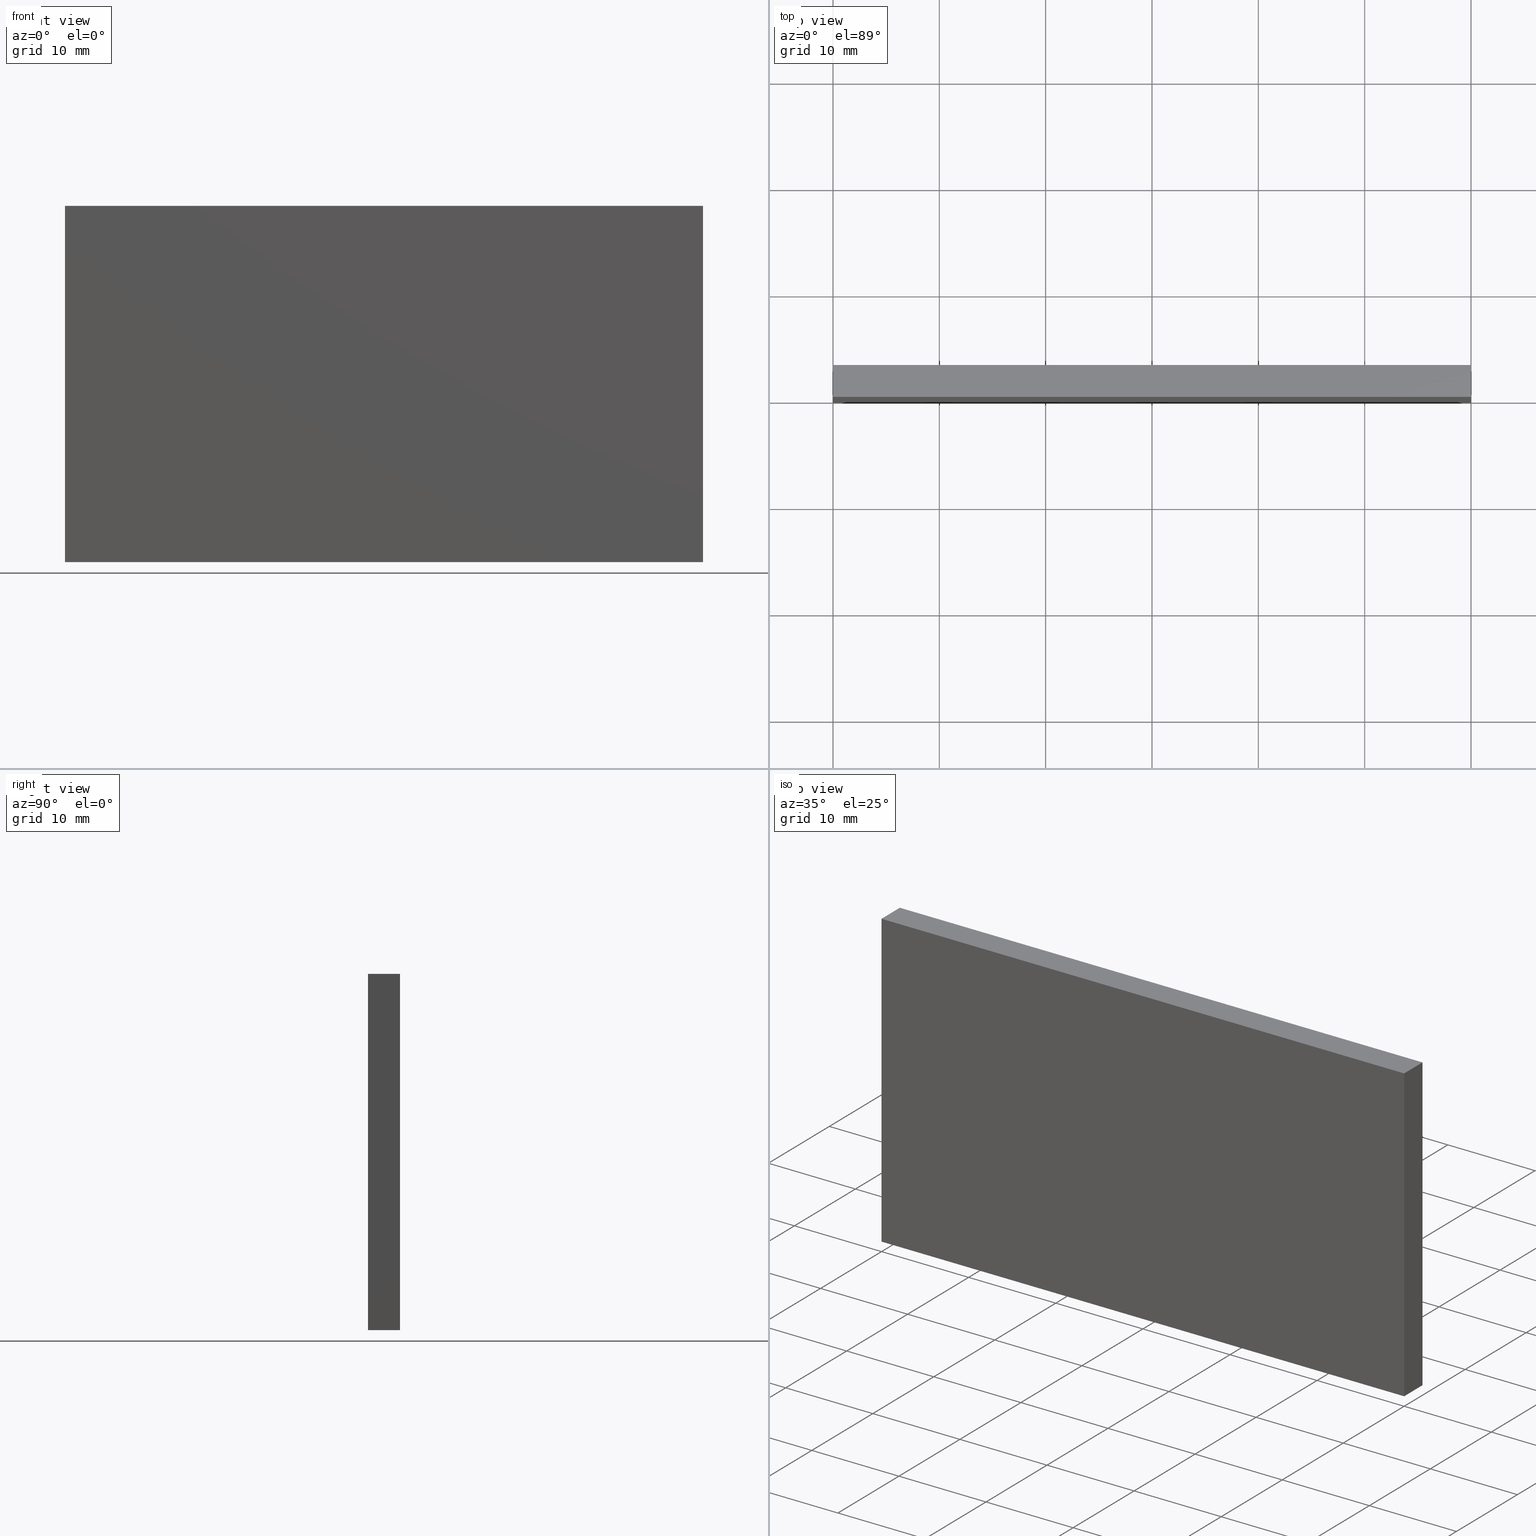
[diagram: canonical four-view strip — front | top / right | iso, engineering-drawing reading convention]
A machine part, canonical four-view strip (front | top / right | iso — engineering-drawing reading convention). The complete STEP part file that produces these views, byte-faithful:
ISO-10303-21;
HEADER;
FILE_DESCRIPTION (( 'STEP AP214' ),
    '1' );
FILE_NAME ('A000201-V.step',
    '2020-03-12T15:21:16',
    ( '' ),
    ( '' ),
    'SwSTEP 2.0',
    'SolidWorks 2010',
    '' );
FILE_SCHEMA (( 'AUTOMOTIVE_DESIGN' ));
ENDSEC;

DATA;
#1 = EDGE_CURVE ( 'NONE', #252, #242, #93, .T. ) ;
#2 = AXIS2_PLACEMENT_3D ( 'NONE', #235, #282, #267 ) ;
#3 = PRESENTATION_LAYER_ASSIGNMENT (  '', '', ( #55 ) ) ;
#4 = EDGE_CURVE ( 'NONE', #214, #240, #44, .T. ) ;
#5 = MECHANICAL_DESIGN_GEOMETRIC_PRESENTATION_REPRESENTATION (  '', ( #143 ), #46 ) ;
#6 = MECHANICAL_DESIGN_GEOMETRIC_PRESENTATION_REPRESENTATION (  '', ( #61 ), #58 ) ;
#7 = AXIS2_PLACEMENT_3D ( 'NONE', #289, #180, #189 ) ;
#8 = EDGE_CURVE ( 'NONE', #253, #226, #90, .T. ) ;
#9 = AXIS2_PLACEMENT_3D ( 'NONE', #215, #286, #288 ) ;
#10 = MECHANICAL_DESIGN_GEOMETRIC_PRESENTATION_REPRESENTATION (  '', ( #121 ), #124 ) ;
#11 = PRESENTATION_LAYER_ASSIGNMENT (  '', '', ( #143 ) ) ;
#12 = EDGE_CURVE ( 'NONE', #257, #242, #91, .T. ) ;
#13 = EDGE_CURVE ( 'NONE', #242, #214, #131, .T. ) ;
#14 = AXIS2_PLACEMENT_3D ( 'NONE', #176, #170, #162 ) ;
#15 = PRESENTATION_LAYER_ASSIGNMENT (  '', '', ( #74 ) ) ;
#16 = PRESENTATION_LAYER_ASSIGNMENT (  '', '', ( #121 ) ) ;
#17 = MECHANICAL_DESIGN_GEOMETRIC_PRESENTATION_REPRESENTATION (  '', ( #55 ), #87 ) ;
#18 = PRESENTATION_LAYER_ASSIGNMENT (  '', '', ( #139 ) ) ;
#19 = MECHANICAL_DESIGN_GEOMETRIC_PRESENTATION_REPRESENTATION (  '', ( #74 ), #52 ) ;
#20 = AXIS2_PLACEMENT_3D ( 'NONE', #184, #185, #196 ) ;
#21 = EDGE_CURVE ( 'NONE', #257, #253, #102, .T. ) ;
#22 = EDGE_CURVE ( 'NONE', #252, #253, #104, .T. ) ;
#23 = PRODUCT_RELATED_PRODUCT_CATEGORY ( 'part', '', ( #41 ) ) ;
#24 = PRESENTATION_LAYER_ASSIGNMENT (  '', '', ( #129 ) ) ;
#25 = AXIS2_PLACEMENT_3D ( 'NONE', #278, #168, #181 ) ;
#26 = MECHANICAL_DESIGN_GEOMETRIC_PRESENTATION_REPRESENTATION (  '', ( #129 ), #133 ) ;
#27 = EDGE_CURVE ( 'NONE', #226, #240, #106, .T. ) ;
#28 = MECHANICAL_DESIGN_GEOMETRIC_PRESENTATION_REPRESENTATION (  '', ( #115 ), #136 ) ;
#29 = EDGE_CURVE ( 'NONE', #255, #226, #108, .T. ) ;
#30 = MECHANICAL_DESIGN_GEOMETRIC_PRESENTATION_REPRESENTATION (  '', ( #139 ), #45 ) ;
#31 = EDGE_CURVE ( 'NONE', #240, #252, #97, .T. ) ;
#32 = EDGE_CURVE ( 'NONE', #255, #257, #111, .T. ) ;
#33 = AXIS2_PLACEMENT_3D ( 'NONE', #224, #193, #197 ) ;
#34 = PRODUCT_DEFINITION ( 'UNKNOWN', '', #36, #39 ) ;
#35 = PRESENTATION_LAYER_ASSIGNMENT (  '', '', ( #61 ) ) ;
#36 = PRODUCT_DEFINITION_FORMATION_WITH_SPECIFIED_SOURCE ( 'ANY', '', #41, .NOT_KNOWN. ) ;
#37 = PRESENTATION_LAYER_ASSIGNMENT (  '', '', ( #115 ) ) ;
#38 = EDGE_CURVE ( 'NONE', #214, #255, #113, .T. ) ;
#39 = PRODUCT_DEFINITION_CONTEXT ( 'detailed design', #207, 'design' ) ;
#40 = PRODUCT_DEFINITION_SHAPE ( 'NONE', 'NONE',  #34 ) ;
#41 = PRODUCT ( 'A000201-V', 'A000201-V', '', ( #281 ) ) ;
#42 = FACE_OUTER_BOUND ( 'NONE', #86, .T. ) ;
#43 = ORIENTED_EDGE ( 'NONE', *, *, #38, .F. ) ;
#44 = LINE ( 'NONE', #213, #95 ) ;
#45 =( GEOMETRIC_REPRESENTATION_CONTEXT ( 3 ) GLOBAL_UNCERTAINTY_ASSIGNED_CONTEXT ( ( #148 ) ) GLOBAL_UNIT_ASSIGNED_CONTEXT ( ( #262, #188, #287 ) ) REPRESENTATION_CONTEXT ( 'NONE', 'WORKASPACE' ) );
#46 =( GEOMETRIC_REPRESENTATION_CONTEXT ( 3 ) GLOBAL_UNCERTAINTY_ASSIGNED_CONTEXT ( ( #147 ) ) GLOBAL_UNIT_ASSIGNED_CONTEXT ( ( #201, #171, #270 ) ) REPRESENTATION_CONTEXT ( 'NONE', 'WORKASPACE' ) );
#47 = SURFACE_STYLE_FILL_AREA ( #192 ) ;
#48 = CLOSED_SHELL ( 'NONE', ( #157, #158, #161, #156, #160, #159 ) ) ;
#49 = FACE_OUTER_BOUND ( 'NONE', #88, .T. ) ;
#50 = ORIENTED_EDGE ( 'NONE', *, *, #29, .T. ) ;
#51 = COLOUR_RGB ( '',0.2000000000000000100, 0.2000000000000000100, 0.2000000000000000100 ) ;
#52 =( GEOMETRIC_REPRESENTATION_CONTEXT ( 3 ) GLOBAL_UNCERTAINTY_ASSIGNED_CONTEXT ( ( #145 ) ) GLOBAL_UNIT_ASSIGNED_CONTEXT ( ( #271, #269, #187 ) ) REPRESENTATION_CONTEXT ( 'NONE', 'WORKASPACE' ) );
#53 =( GEOMETRIC_REPRESENTATION_CONTEXT ( 3 ) GLOBAL_UNCERTAINTY_ASSIGNED_CONTEXT ( ( #153 ) ) GLOBAL_UNIT_ASSIGNED_CONTEXT ( ( #266, #276, #279 ) ) REPRESENTATION_CONTEXT ( 'NONE', 'WORKASPACE' ) );
#54 = COLOUR_RGB ( '',0.7529411764705882200, 0.7529411764705882200, 0.7529411764705882200 ) ;
#55 = STYLED_ITEM ( 'NONE', ( #56 ), #159 ) ;
#56 = PRESENTATION_STYLE_ASSIGNMENT (( #164 ) ) ;
#57 = SURFACE_STYLE_FILL_AREA ( #274 ) ;
#58 =( GEOMETRIC_REPRESENTATION_CONTEXT ( 3 ) GLOBAL_UNCERTAINTY_ASSIGNED_CONTEXT ( ( #155 ) ) GLOBAL_UNIT_ASSIGNED_CONTEXT ( ( #211, #190, #165 ) ) REPRESENTATION_CONTEXT ( 'NONE', 'WORKASPACE' ) );
#59 = PRESENTATION_STYLE_ASSIGNMENT (( #280 ) ) ;
#60 = COLOUR_RGB ( '',0.2000000000000000100, 0.2000000000000000100, 0.2000000000000000100 ) ;
#61 = STYLED_ITEM ( 'NONE', ( #59 ), #154 ) ;
#62 = SHAPE_DEFINITION_REPRESENTATION ( #40, #154 ) ;
#63 = ORIENTED_EDGE ( 'NONE', *, *, #38, .T. ) ;
#64 = ORIENTED_EDGE ( 'NONE', *, *, #12, .T. ) ;
#65 = ORIENTED_EDGE ( 'NONE', *, *, #4, .F. ) ;
#66 = ORIENTED_EDGE ( 'NONE', *, *, #13, .F. ) ;
#67 = ORIENTED_EDGE ( 'NONE', *, *, #21, .T. ) ;
#68 = ORIENTED_EDGE ( 'NONE', *, *, #1, .F. ) ;
#69 = ORIENTED_EDGE ( 'NONE', *, *, #12, .F. ) ;
#70 = ORIENTED_EDGE ( 'NONE', *, *, #8, .F. ) ;
#71 = ORIENTED_EDGE ( 'NONE', *, *, #1, .T. ) ;
#72 = ORIENTED_EDGE ( 'NONE', *, *, #32, .F. ) ;
#73 = ORIENTED_EDGE ( 'NONE', *, *, #31, .F. ) ;
#74 = STYLED_ITEM ( 'NONE', ( #132 ), #161 ) ;
#75 = SURFACE_STYLE_FILL_AREA ( #199 ) ;
#76 = ORIENTED_EDGE ( 'NONE', *, *, #29, .F. ) ;
#77 = ORIENTED_EDGE ( 'NONE', *, *, #31, .T. ) ;
#78 = ORIENTED_EDGE ( 'NONE', *, *, #4, .T. ) ;
#79 = ORIENTED_EDGE ( 'NONE', *, *, #8, .T. ) ;
#80 = ORIENTED_EDGE ( 'NONE', *, *, #32, .T. ) ;
#81 = ORIENTED_EDGE ( 'NONE', *, *, #21, .F. ) ;
#82 = ORIENTED_EDGE ( 'NONE', *, *, #13, .T. ) ;
#83 = EDGE_LOOP ( 'NONE', ( #78, #122, #76, #43 ) ) ;
#84 = EDGE_LOOP ( 'NONE', ( #50, #70, #81, #72 ) ) ;
#85 = EDGE_LOOP ( 'NONE', ( #63, #80, #64, #82 ) ) ;
#86 = EDGE_LOOP ( 'NONE', ( #67, #92, #71, #69 ) ) ;
#87 =( GEOMETRIC_REPRESENTATION_CONTEXT ( 3 ) GLOBAL_UNCERTAINTY_ASSIGNED_CONTEXT ( ( #150 ) ) GLOBAL_UNIT_ASSIGNED_CONTEXT ( ( #166, #198, #194 ) ) REPRESENTATION_CONTEXT ( 'NONE', 'WORKASPACE' ) );
#88 = EDGE_LOOP ( 'NONE', ( #68, #73, #65, #66 ) ) ;
#89 = EDGE_LOOP ( 'NONE', ( #119, #77, #140, #79 ) ) ;
#90 = LINE ( 'NONE', #251, #96 ) ;
#91 = LINE ( 'NONE', #264, #98 ) ;
#92 = ORIENTED_EDGE ( 'NONE', *, *, #22, .F. ) ;
#93 = LINE ( 'NONE', #225, #94 ) ;
#94 = VECTOR ( 'NONE', #254, 1000.000000000000000 ) ;
#95 = VECTOR ( 'NONE', #256, 1000.000000000000000 ) ;
#96 = VECTOR ( 'NONE', #241, 1000.000000000000000 ) ;
#97 = LINE ( 'NONE', #258, #110 ) ;
#98 = VECTOR ( 'NONE', #249, 1000.000000000000000 ) ;
#99 = COLOUR_RGB ( '',0.7529411764705882200, 0.7529411764705882200, 0.7529411764705882200 ) ;
#100 = VECTOR ( 'NONE', #219, 1000.000000000000000 ) ;
#101 = FACE_OUTER_BOUND ( 'NONE', #83, .T. ) ;
#102 = LINE ( 'NONE', #259, #103 ) ;
#103 = VECTOR ( 'NONE', #292, 1000.000000000000000 ) ;
#104 = LINE ( 'NONE', #217, #105 ) ;
#105 = VECTOR ( 'NONE', #218, 1000.000000000000000 ) ;
#106 = LINE ( 'NONE', #234, #107 ) ;
#107 = VECTOR ( 'NONE', #248, 1000.000000000000000 ) ;
#108 = LINE ( 'NONE', #245, #109 ) ;
#109 = VECTOR ( 'NONE', #233, 1000.000000000000000 ) ;
#110 = VECTOR ( 'NONE', #229, 1000.000000000000000 ) ;
#111 = LINE ( 'NONE', #244, #112 ) ;
#112 = VECTOR ( 'NONE', #221, 1000.000000000000000 ) ;
#113 = LINE ( 'NONE', #246, #114 ) ;
#114 = VECTOR ( 'NONE', #178, 1000.000000000000000 ) ;
#115 = STYLED_ITEM ( 'NONE', ( #127 ), #160 ) ;
#116 = COLOUR_RGB ( '',0.2000000000000000100, 0.2000000000000000100, 0.2000000000000000100 ) ;
#117 = SURFACE_STYLE_FILL_AREA ( #290 ) ;
#118 = SURFACE_STYLE_FILL_AREA ( #236 ) ;
#119 = ORIENTED_EDGE ( 'NONE', *, *, #27, .T. ) ;
#120 = PRESENTATION_STYLE_ASSIGNMENT (( #228 ) ) ;
#121 = STYLED_ITEM ( 'NONE', ( #120 ), #151 ) ;
#122 = ORIENTED_EDGE ( 'NONE', *, *, #27, .F. ) ;
#123 = SURFACE_STYLE_FILL_AREA ( #204 ) ;
#124 =( GEOMETRIC_REPRESENTATION_CONTEXT ( 3 ) GLOBAL_UNCERTAINTY_ASSIGNED_CONTEXT ( ( #152 ) ) GLOBAL_UNIT_ASSIGNED_CONTEXT ( ( #163, #243, #220 ) ) REPRESENTATION_CONTEXT ( 'NONE', 'WORKASPACE' ) );
#125 = FACE_OUTER_BOUND ( 'NONE', #85, .T. ) ;
#126 = SURFACE_STYLE_FILL_AREA ( #223 ) ;
#127 = PRESENTATION_STYLE_ASSIGNMENT (( #173 ) ) ;
#128 = PRESENTATION_STYLE_ASSIGNMENT (( #227 ) ) ;
#129 = STYLED_ITEM ( 'NONE', ( #128 ), #156 ) ;
#130 = FACE_OUTER_BOUND ( 'NONE', #89, .T. ) ;
#131 = LINE ( 'NONE', #250, #100 ) ;
#132 = PRESENTATION_STYLE_ASSIGNMENT (( #203 ) ) ;
#133 =( GEOMETRIC_REPRESENTATION_CONTEXT ( 3 ) GLOBAL_UNCERTAINTY_ASSIGNED_CONTEXT ( ( #146 ) ) GLOBAL_UNIT_ASSIGNED_CONTEXT ( ( #238, #263, #239 ) ) REPRESENTATION_CONTEXT ( 'NONE', 'WORKASPACE' ) );
#134 = COLOUR_RGB ( '',0.2000000000000000100, 0.2000000000000000100, 0.2000000000000000100 ) ;
#135 = COLOUR_RGB ( '',0.2000000000000000100, 0.2000000000000000100, 0.2000000000000000100 ) ;
#136 =( GEOMETRIC_REPRESENTATION_CONTEXT ( 3 ) GLOBAL_UNCERTAINTY_ASSIGNED_CONTEXT ( ( #149 ) ) GLOBAL_UNIT_ASSIGNED_CONTEXT ( ( #272, #265, #167 ) ) REPRESENTATION_CONTEXT ( 'NONE', 'WORKASPACE' ) );
#137 = SURFACE_STYLE_FILL_AREA ( #200 ) ;
#138 = PRESENTATION_STYLE_ASSIGNMENT (( #291 ) ) ;
#139 = STYLED_ITEM ( 'NONE', ( #138 ), #157 ) ;
#140 = ORIENTED_EDGE ( 'NONE', *, *, #22, .T. ) ;
#141 = COLOUR_RGB ( '',0.2000000000000000100, 0.2000000000000000100, 0.2000000000000000100 ) ;
#142 = PRESENTATION_STYLE_ASSIGNMENT (( #285 ) ) ;
#143 = STYLED_ITEM ( 'NONE', ( #142 ), #158 ) ;
#144 = FACE_OUTER_BOUND ( 'NONE', #84, .T. ) ;
#145 = UNCERTAINTY_MEASURE_WITH_UNIT (LENGTH_MEASURE( 1.000000000000000100E-005 ), #271, 'distance_accuracy_value', 'NONE');
#146 = UNCERTAINTY_MEASURE_WITH_UNIT (LENGTH_MEASURE( 1.000000000000000100E-005 ), #238, 'distance_accuracy_value', 'NONE');
#147 = UNCERTAINTY_MEASURE_WITH_UNIT (LENGTH_MEASURE( 1.000000000000000100E-005 ), #201, 'distance_accuracy_value', 'NONE');
#148 = UNCERTAINTY_MEASURE_WITH_UNIT (LENGTH_MEASURE( 1.000000000000000100E-005 ), #262, 'distance_accuracy_value', 'NONE');
#149 = UNCERTAINTY_MEASURE_WITH_UNIT (LENGTH_MEASURE( 1.000000000000000100E-005 ), #272, 'distance_accuracy_value', 'NONE');
#150 = UNCERTAINTY_MEASURE_WITH_UNIT (LENGTH_MEASURE( 1.000000000000000100E-005 ), #166, 'distance_accuracy_value', 'NONE');
#151 = MANIFOLD_SOLID_BREP ( 'A000201', #48 ) ;
#152 = UNCERTAINTY_MEASURE_WITH_UNIT (LENGTH_MEASURE( 1.000000000000000100E-005 ), #163, 'distance_accuracy_value', 'NONE');
#153 = UNCERTAINTY_MEASURE_WITH_UNIT (LENGTH_MEASURE( 1.000000000000000100E-005 ), #266, 'distance_accuracy_value', 'NONE');
#154 = ADVANCED_BREP_SHAPE_REPRESENTATION ( 'A000201-V', ( #151, #25 ), #53 ) ;
#155 = UNCERTAINTY_MEASURE_WITH_UNIT (LENGTH_MEASURE( 1.000000000000000100E-005 ), #211, 'distance_accuracy_value', 'NONE');
#156 = ADVANCED_FACE ( 'NONE', ( #101 ), #247, .F. ) ;
#157 = ADVANCED_FACE ( 'NONE', ( #125 ), #261, .F. ) ;
#158 = ADVANCED_FACE ( 'NONE', ( #42 ), #186, .F. ) ;
#159 = ADVANCED_FACE ( 'NONE', ( #130 ), #275, .T. ) ;
#160 = ADVANCED_FACE ( 'NONE', ( #49 ), #183, .F. ) ;
#161 = ADVANCED_FACE ( 'NONE', ( #144 ), #169, .F. ) ;
#162 = DIRECTION ( 'NONE',  ( 1.000000000000000000, 0.0000000000000000000, -0.0000000000000000000 ) ) ;
#163 =( LENGTH_UNIT ( ) NAMED_UNIT ( * ) SI_UNIT ( .MILLI., .METRE. ) );
#164 = SURFACE_STYLE_USAGE ( .BOTH. , #268 ) ;
#165 =( NAMED_UNIT ( * ) SI_UNIT ( $, .STERADIAN. ) SOLID_ANGLE_UNIT ( ) );
#166 =( LENGTH_UNIT ( ) NAMED_UNIT ( * ) SI_UNIT ( .MILLI., .METRE. ) );
#167 =( NAMED_UNIT ( * ) SI_UNIT ( $, .STERADIAN. ) SOLID_ANGLE_UNIT ( ) );
#168 = DIRECTION ( 'NONE',  ( 0.0000000000000000000, 0.0000000000000000000, 1.000000000000000000 ) ) ;
#169 = PLANE ( 'NONE',  #2 ) ;
#170 = DIRECTION ( 'NONE',  ( 0.0000000000000000000, 0.0000000000000000000, 1.000000000000000000 ) ) ;
#171 =( NAMED_UNIT ( * ) PLANE_ANGLE_UNIT ( ) SI_UNIT ( $, .RADIAN. ) );
#172 = FILL_AREA_STYLE_COLOUR ( '', #135 ) ;
#173 = SURFACE_STYLE_USAGE ( .BOTH. , #191 ) ;
#174 = CARTESIAN_POINT ( 'NONE',  ( 30.00000000000000000, 3.000000000000000000, 16.75000000000000000 ) ) ;
#175 = FILL_AREA_STYLE_COLOUR ( '', #141 ) ;
#176 = CARTESIAN_POINT ( 'NONE',  ( 30.00000000000000000, 3.000000000000000000, -16.75000000000000000 ) ) ;
#177 = SURFACE_SIDE_STYLE ('',( #123 ) ) ;
#178 = DIRECTION ( 'NONE',  ( 0.0000000000000000000, 0.0000000000000000000, 1.000000000000000000 ) ) ;
#179 = APPLICATION_PROTOCOL_DEFINITION ( 'draft international standard', 'automotive_design', 1998, #260 ) ;
#180 = DIRECTION ( 'NONE',  ( 1.000000000000000000, 0.0000000000000000000, 0.0000000000000000000 ) ) ;
#181 = DIRECTION ( 'NONE',  ( 1.000000000000000000, 0.0000000000000000000, 0.0000000000000000000 ) ) ;
#182 = FILL_AREA_STYLE_COLOUR ( '', #51 ) ;
#183 = PLANE ( 'NONE',  #14 ) ;
#184 = CARTESIAN_POINT ( 'NONE',  ( 0.0000000000000000000, 3.000000000000000000, 0.0000000000000000000 ) ) ;
#185 = DIRECTION ( 'NONE',  ( -0.0000000000000000000, 1.000000000000000000, 0.0000000000000000000 ) ) ;
#186 = PLANE ( 'NONE',  #7 ) ;
#187 =( NAMED_UNIT ( * ) SI_UNIT ( $, .STERADIAN. ) SOLID_ANGLE_UNIT ( ) );
#188 =( NAMED_UNIT ( * ) PLANE_ANGLE_UNIT ( ) SI_UNIT ( $, .RADIAN. ) );
#189 = DIRECTION ( 'NONE',  ( 0.0000000000000000000, 0.0000000000000000000, -1.000000000000000000 ) ) ;
#190 =( NAMED_UNIT ( * ) PLANE_ANGLE_UNIT ( ) SI_UNIT ( $, .RADIAN. ) );
#191 = SURFACE_SIDE_STYLE ('',( #47 ) ) ;
#192 = FILL_AREA_STYLE ('',( #172 ) ) ;
#193 = DIRECTION ( 'NONE',  ( -0.0000000000000000000, 1.000000000000000000, 0.0000000000000000000 ) ) ;
#194 =( NAMED_UNIT ( * ) SI_UNIT ( $, .STERADIAN. ) SOLID_ANGLE_UNIT ( ) );
#195 = FILL_AREA_STYLE_COLOUR ( '', #60 ) ;
#196 = DIRECTION ( 'NONE',  ( 0.0000000000000000000, -0.0000000000000000000, 1.000000000000000000 ) ) ;
#197 = DIRECTION ( 'NONE',  ( 0.0000000000000000000, -0.0000000000000000000, 1.000000000000000000 ) ) ;
#198 =( NAMED_UNIT ( * ) PLANE_ANGLE_UNIT ( ) SI_UNIT ( $, .RADIAN. ) );
#199 = FILL_AREA_STYLE ('',( #195 ) ) ;
#200 = FILL_AREA_STYLE ('',( #182 ) ) ;
#201 =( LENGTH_UNIT ( ) NAMED_UNIT ( * ) SI_UNIT ( .MILLI., .METRE. ) );
#202 = SURFACE_SIDE_STYLE ('',( #137 ) ) ;
#203 = SURFACE_STYLE_USAGE ( .BOTH. , #177 ) ;
#204 = FILL_AREA_STYLE ('',( #175 ) ) ;
#205 = CARTESIAN_POINT ( 'NONE',  ( 30.00000000000000000, 0.0000000000000000000, 16.75000000000000000 ) ) ;
#206 = CARTESIAN_POINT ( 'NONE',  ( -30.00000000000000000, 3.000000000000000000, 16.75000000000000000 ) ) ;
#207 = APPLICATION_CONTEXT ( 'automotive_design' ) ;
#208 = CARTESIAN_POINT ( 'NONE',  ( -30.00000000000000000, 3.000000000000000000, -16.75000000000000000 ) ) ;
#209 = CARTESIAN_POINT ( 'NONE',  ( 30.00000000000000000, 3.000000000000000000, -16.75000000000000000 ) ) ;
#210 = APPLICATION_PROTOCOL_DEFINITION ( 'draft international standard', 'automotive_design', 1998, #207 ) ;
#211 =( LENGTH_UNIT ( ) NAMED_UNIT ( * ) SI_UNIT ( .MILLI., .METRE. ) );
#212 = SURFACE_SIDE_STYLE ('',( #57 ) ) ;
#213 = CARTESIAN_POINT ( 'NONE',  ( 30.00000000000000000, 3.000000000000000000, -16.75000000000000000 ) ) ;
#214 = VERTEX_POINT ( 'NONE', #284 ) ;
#215 = CARTESIAN_POINT ( 'NONE',  ( 30.00000000000000000, 3.000000000000000000, 16.75000000000000000 ) ) ;
#216 = FILL_AREA_STYLE_COLOUR ( '', #54 ) ;
#217 = CARTESIAN_POINT ( 'NONE',  ( -30.00000000000000000, 3.000000000000000000, 0.0000000000000000000 ) ) ;
#218 = DIRECTION ( 'NONE',  ( 0.0000000000000000000, -0.0000000000000000000, 1.000000000000000000 ) ) ;
#219 = DIRECTION ( 'NONE',  ( 1.000000000000000000, 0.0000000000000000000, -0.0000000000000000000 ) ) ;
#220 =( NAMED_UNIT ( * ) SI_UNIT ( $, .STERADIAN. ) SOLID_ANGLE_UNIT ( ) );
#221 = DIRECTION ( 'NONE',  ( -1.000000000000000000, 0.0000000000000000000, -0.0000000000000000000 ) ) ;
#222 = SURFACE_SIDE_STYLE ('',( #126 ) ) ;
#223 = FILL_AREA_STYLE ('',( #230 ) ) ;
#224 = CARTESIAN_POINT ( 'NONE',  ( 0.0000000000000000000, 0.0000000000000000000, 0.0000000000000000000 ) ) ;
#225 = CARTESIAN_POINT ( 'NONE',  ( -30.00000000000000000, 3.000000000000000000, -16.75000000000000000 ) ) ;
#226 = VERTEX_POINT ( 'NONE', #174 ) ;
#227 = SURFACE_STYLE_USAGE ( .BOTH. , #222 ) ;
#228 = SURFACE_STYLE_USAGE ( .BOTH. , #237 ) ;
#229 = DIRECTION ( 'NONE',  ( -1.000000000000000000, -0.0000000000000000000, -0.0000000000000000000 ) ) ;
#230 = FILL_AREA_STYLE_COLOUR ( '', #116 ) ;
#231 = SURFACE_SIDE_STYLE ('',( #117 ) ) ;
#232 = FILL_AREA_STYLE_COLOUR ( '', #99 ) ;
#233 = DIRECTION ( 'NONE',  ( 0.0000000000000000000, 1.000000000000000000, -0.0000000000000000000 ) ) ;
#234 = CARTESIAN_POINT ( 'NONE',  ( 30.00000000000000000, 3.000000000000000000, 0.0000000000000000000 ) ) ;
#235 = CARTESIAN_POINT ( 'NONE',  ( -30.00000000000000000, 3.000000000000000000, 16.75000000000000000 ) ) ;
#236 = FILL_AREA_STYLE ('',( #232 ) ) ;
#237 = SURFACE_SIDE_STYLE ('',( #118 ) ) ;
#238 =( LENGTH_UNIT ( ) NAMED_UNIT ( * ) SI_UNIT ( .MILLI., .METRE. ) );
#239 =( NAMED_UNIT ( * ) SI_UNIT ( $, .STERADIAN. ) SOLID_ANGLE_UNIT ( ) );
#240 = VERTEX_POINT ( 'NONE', #209 ) ;
#241 = DIRECTION ( 'NONE',  ( 1.000000000000000000, 0.0000000000000000000, 0.0000000000000000000 ) ) ;
#242 = VERTEX_POINT ( 'NONE', #283 ) ;
#243 =( NAMED_UNIT ( * ) PLANE_ANGLE_UNIT ( ) SI_UNIT ( $, .RADIAN. ) );
#244 = CARTESIAN_POINT ( 'NONE',  ( -30.00000000000000000, 0.0000000000000000000, 16.75000000000000000 ) ) ;
#245 = CARTESIAN_POINT ( 'NONE',  ( 30.00000000000000000, 3.000000000000000000, 16.75000000000000000 ) ) ;
#246 = CARTESIAN_POINT ( 'NONE',  ( 30.00000000000000000, 0.0000000000000000000, 16.75000000000000000 ) ) ;
#247 = PLANE ( 'NONE',  #9 ) ;
#248 = DIRECTION ( 'NONE',  ( -0.0000000000000000000, 0.0000000000000000000, -1.000000000000000000 ) ) ;
#249 = DIRECTION ( 'NONE',  ( 0.0000000000000000000, 0.0000000000000000000, -1.000000000000000000 ) ) ;
#250 = CARTESIAN_POINT ( 'NONE',  ( 30.00000000000000000, 0.0000000000000000000, -16.75000000000000000 ) ) ;
#251 = CARTESIAN_POINT ( 'NONE',  ( 0.0000000000000000000, 3.000000000000000000, 16.75000000000000000 ) ) ;
#252 = VERTEX_POINT ( 'NONE', #208 ) ;
#253 = VERTEX_POINT ( 'NONE', #206 ) ;
#254 = DIRECTION ( 'NONE',  ( 0.0000000000000000000, -1.000000000000000000, -0.0000000000000000000 ) ) ;
#255 = VERTEX_POINT ( 'NONE', #205 ) ;
#256 = DIRECTION ( 'NONE',  ( -0.0000000000000000000, 1.000000000000000000, 0.0000000000000000000 ) ) ;
#257 = VERTEX_POINT ( 'NONE', #277 ) ;
#258 = CARTESIAN_POINT ( 'NONE',  ( 0.0000000000000000000, 3.000000000000000000, -16.75000000000000000 ) ) ;
#259 = CARTESIAN_POINT ( 'NONE',  ( -30.00000000000000000, 3.000000000000000000, 16.75000000000000000 ) ) ;
#260 = APPLICATION_CONTEXT ( 'automotive_design' ) ;
#261 = PLANE ( 'NONE',  #33 ) ;
#262 =( LENGTH_UNIT ( ) NAMED_UNIT ( * ) SI_UNIT ( .MILLI., .METRE. ) );
#263 =( NAMED_UNIT ( * ) PLANE_ANGLE_UNIT ( ) SI_UNIT ( $, .RADIAN. ) );
#264 = CARTESIAN_POINT ( 'NONE',  ( -30.00000000000000000, 0.0000000000000000000, -16.75000000000000000 ) ) ;
#265 =( NAMED_UNIT ( * ) PLANE_ANGLE_UNIT ( ) SI_UNIT ( $, .RADIAN. ) );
#266 =( LENGTH_UNIT ( ) NAMED_UNIT ( * ) SI_UNIT ( .MILLI., .METRE. ) );
#267 = DIRECTION ( 'NONE',  ( -1.000000000000000000, 0.0000000000000000000, -0.0000000000000000000 ) ) ;
#268 = SURFACE_SIDE_STYLE ('',( #75 ) ) ;
#269 =( NAMED_UNIT ( * ) PLANE_ANGLE_UNIT ( ) SI_UNIT ( $, .RADIAN. ) );
#270 =( NAMED_UNIT ( * ) SI_UNIT ( $, .STERADIAN. ) SOLID_ANGLE_UNIT ( ) );
#271 =( LENGTH_UNIT ( ) NAMED_UNIT ( * ) SI_UNIT ( .MILLI., .METRE. ) );
#272 =( LENGTH_UNIT ( ) NAMED_UNIT ( * ) SI_UNIT ( .MILLI., .METRE. ) );
#273 = FILL_AREA_STYLE_COLOUR ( '', #134 ) ;
#274 = FILL_AREA_STYLE ('',( #216 ) ) ;
#275 = PLANE ( 'NONE',  #20 ) ;
#276 =( NAMED_UNIT ( * ) PLANE_ANGLE_UNIT ( ) SI_UNIT ( $, .RADIAN. ) );
#277 = CARTESIAN_POINT ( 'NONE',  ( -30.00000000000000000, 0.0000000000000000000, 16.75000000000000000 ) ) ;
#278 = CARTESIAN_POINT ( 'NONE',  ( 0.0000000000000000000, 0.0000000000000000000, 0.0000000000000000000 ) ) ;
#279 =( NAMED_UNIT ( * ) SI_UNIT ( $, .STERADIAN. ) SOLID_ANGLE_UNIT ( ) );
#280 = SURFACE_STYLE_USAGE ( .BOTH. , #212 ) ;
#281 = PRODUCT_CONTEXT ( 'NONE', #260, 'mechanical' ) ;
#282 = DIRECTION ( 'NONE',  ( 0.0000000000000000000, 0.0000000000000000000, -1.000000000000000000 ) ) ;
#283 = CARTESIAN_POINT ( 'NONE',  ( -30.00000000000000000, 0.0000000000000000000, -16.75000000000000000 ) ) ;
#284 = CARTESIAN_POINT ( 'NONE',  ( 30.00000000000000000, 0.0000000000000000000, -16.75000000000000000 ) ) ;
#285 = SURFACE_STYLE_USAGE ( .BOTH. , #202 ) ;
#286 = DIRECTION ( 'NONE',  ( -1.000000000000000000, 0.0000000000000000000, 0.0000000000000000000 ) ) ;
#287 =( NAMED_UNIT ( * ) SI_UNIT ( $, .STERADIAN. ) SOLID_ANGLE_UNIT ( ) );
#288 = DIRECTION ( 'NONE',  ( 0.0000000000000000000, 0.0000000000000000000, 1.000000000000000000 ) ) ;
#289 = CARTESIAN_POINT ( 'NONE',  ( -30.00000000000000000, 3.000000000000000000, -16.75000000000000000 ) ) ;
#290 = FILL_AREA_STYLE ('',( #273 ) ) ;
#291 = SURFACE_STYLE_USAGE ( .BOTH. , #231 ) ;
#292 = DIRECTION ( 'NONE',  ( 0.0000000000000000000, 1.000000000000000000, 0.0000000000000000000 ) ) ;
ENDSEC;
END-ISO-10303-21;
